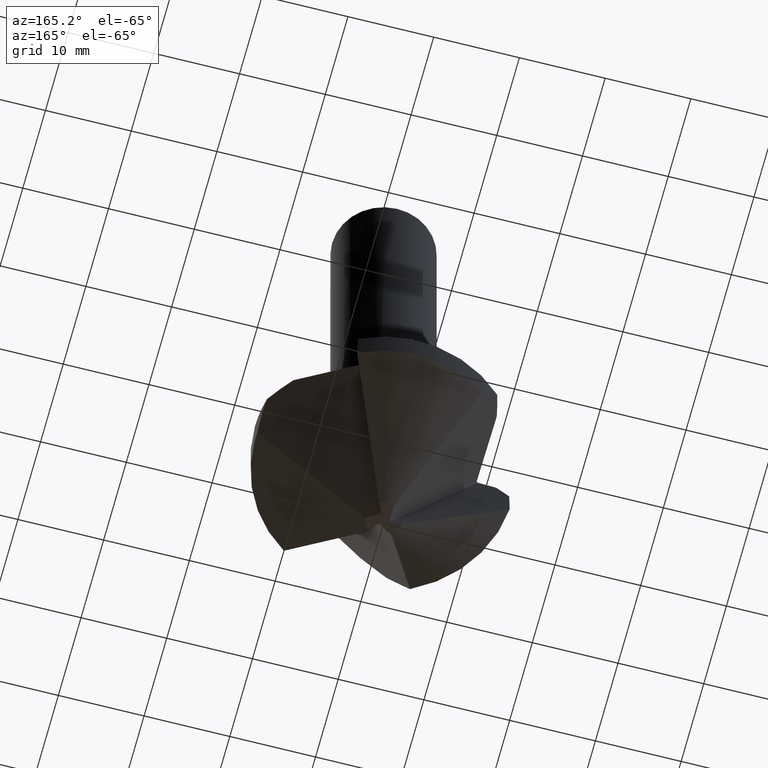
[diagram: clean part render]
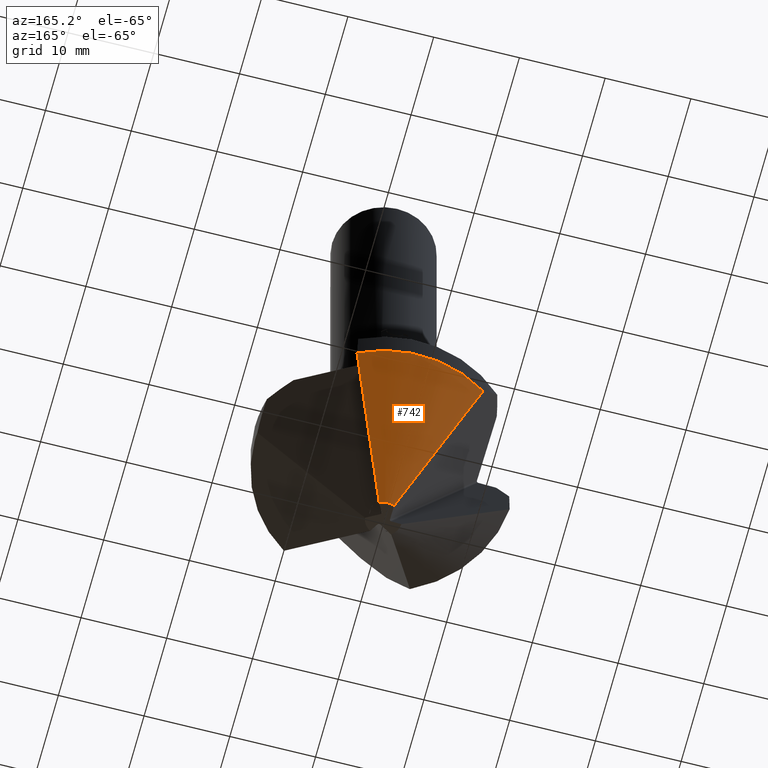
[diagram: same view with one face highlighted and labeled with its STEP entity id]
A machine part, auxiliary view. The second image highlights one B-rep face of the part: STEP entity #742.
In plain terms, the highlighted conical surface has half-angle 45 deg.
Its self-contained STEP definition (entity closure, byte-faithful):
#512=VERTEX_POINT('',#1281);
#742=ADVANCED_FACE('',(#1530),#1531,.T.);
#804=VERTEX_POINT('',#1596);
#876=EDGE_CURVE('',#804,#902,#1678,.T.);
#902=VERTEX_POINT('',#1708);
#904=EDGE_CURVE('',#902,#1122,#1710,.T.);
#1076=EDGE_CURVE('',#512,#1122,#1896,.T.);
#1078=EDGE_CURVE('',#512,#804,#1898,.T.);
#1122=VERTEX_POINT('',#1944);
#1281=CARTESIAN_POINT('',(-0.734623106566583,1.96731514793601,-71.0));
#1530=FACE_OUTER_BOUND('',#2766,.T.);
#1531=CONICAL_SURFACE('',#2767,8.55,0.785398163397448);
#1596=CARTESIAN_POINT('',(-8.33160824033915,12.4733437429389,-58.1));
#1678=CIRCLE('',#3059,15.0);
#1708=CARTESIAN_POINT('',(6.64083539708015,13.4498812347503,-58.1));
#1710=(B_SPLINE_CURVE(2,(#3129,#3130,#3131),.UNSPECIFIED.,.F.,.F.)B_SPLINE_CURVE_WITH_KNOTS((3,3),(0.0,18.2441263801064),.UNSPECIFIED.)RATIONAL_B_SPLINE_CURVE((1.0,1.52295929965135,1.0))BOUNDED_CURVE()REPRESENTATION_ITEM('')GEOMETRIC_REPRESENTATION_ITEM()CURVE());
#1896=CIRCLE('',#3609,2.1);
#1898=(B_SPLINE_CURVE(2,(#3613,#3614,#3615),.UNSPECIFIED.,.F.,.F.)B_SPLINE_CURVE_WITH_KNOTS((3,3),(0.0,18.2894669321312),.UNSPECIFIED.)RATIONAL_B_SPLINE_CURVE((1.0,1.44768983521034,1.0))BOUNDED_CURVE()REPRESENTATION_ITEM('')GEOMETRIC_REPRESENTATION_ITEM()CURVE());
#1944=CARTESIAN_POINT('',(0.985581936125735,1.85435386244984,-71.0));
#2766=EDGE_LOOP('',(#4243,#4244,#4245,#4246));
#2767=AXIS2_PLACEMENT_3D('',#4247,#4248,#4249);
#3059=AXIS2_PLACEMENT_3D('',#4409,#4410,#4411);
#3129=CARTESIAN_POINT('',(6.64083539708015,13.4498812347503,-58.1));
#3130=CARTESIAN_POINT('',(1.68074859993926,3.27965747473399,-69.4151614452094));
#3131=CARTESIAN_POINT('',(0.985581936125735,1.85435386244984,-71.0));
#3609=AXIS2_PLACEMENT_3D('',#4649,#4650,#4651);
#3613=CARTESIAN_POINT('',(-0.734623106566589,1.967315147936,-71.0));
#3614=CARTESIAN_POINT('',(-1.76660643287302,3.45095925996712,-69.2490884129328));
#3615=CARTESIAN_POINT('',(-8.33160824033915,12.4733437429389,-58.1));
#4243=ORIENTED_EDGE('',*,*,#1078,.T.);
#4244=ORIENTED_EDGE('',*,*,#876,.T.);
#4245=ORIENTED_EDGE('',*,*,#904,.T.);
#4246=ORIENTED_EDGE('',*,*,#1076,.F.);
#4247=CARTESIAN_POINT('',(0.0,0.0,-64.55));
#4248=DIRECTION('',(-0.0,-0.0,1.0));
#4249=DIRECTION('',(-1.0,0.0,0.0));
#4409=CARTESIAN_POINT('',(0.0,0.0,-58.1));
#4410=DIRECTION('',(0.0,0.0,-1.0));
#4411=DIRECTION('',(-1.0,0.0,0.0));
#4649=CARTESIAN_POINT('',(0.0,0.0,-71.0));
#4650=DIRECTION('',(0.0,0.0,-1.0));
#4651=DIRECTION('',(-1.0,0.0,0.0));